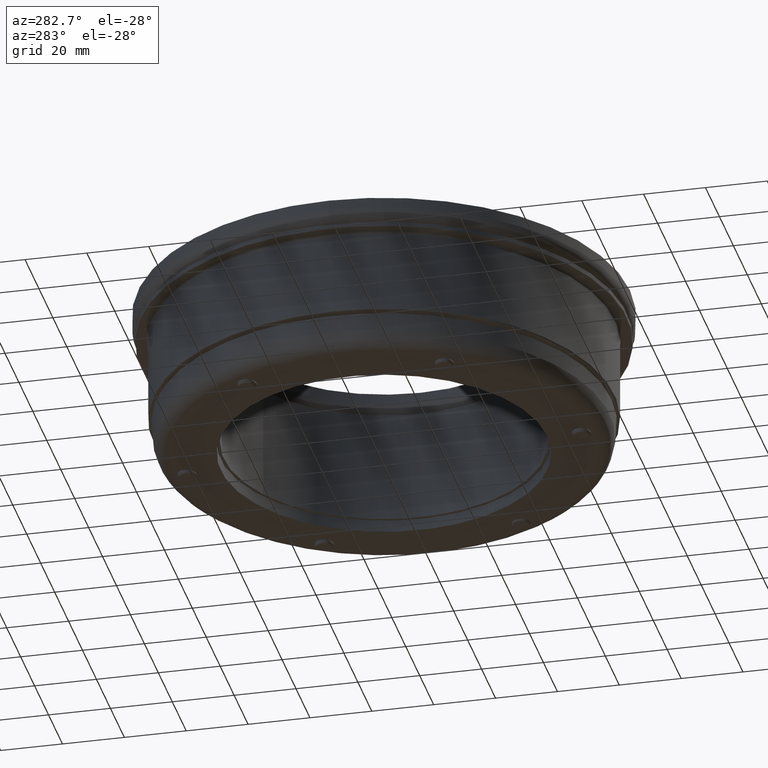
[diagram: clean part render]
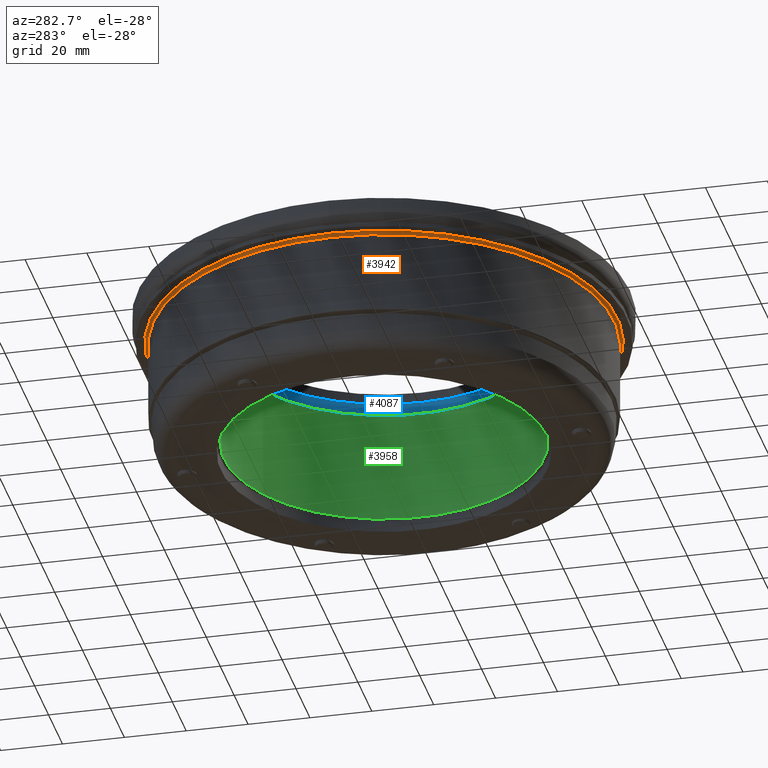
[diagram: same view with three faces highlighted in distinct colors, each labeled with its STEP entity id]
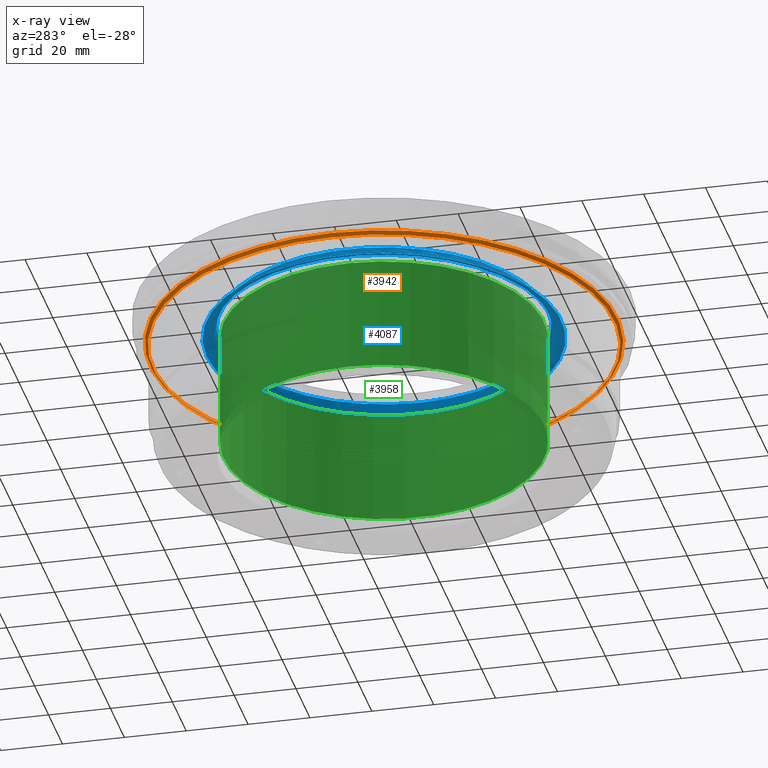
[diagram: x-ray of the same camera — body ghosted, the three highlighted faces saturated]
A machine part, auxiliary view with three faces highlighted in distinct colors.
The next image is the same camera in x-ray (body ghosted, the three faces saturated) — at least one of them is partly hidden behind the body in this view.
Their STEP definitions:

[orange] entity #3942 — the highlighted toroidal blend (fillet) surface has major radius 75.5 mm and minor (blend) radius 1 mm.
#277=TOROIDAL_SURFACE('',#4365,75.5,1.);
#468=FACE_OUTER_BOUND('',#681,.T.);
#681=EDGE_LOOP('',(#2957,#2958,#2959,#2960));
#1576=CIRCLE('',#4364,74.5);
#1577=CIRCLE('',#4366,75.5);
#1578=CIRCLE('',#4367,1.);
#1789=VERTEX_POINT('',#5986);
#1790=VERTEX_POINT('',#5990);
#2236=EDGE_CURVE('',#1789,#1789,#1576,.T.);
#2238=EDGE_CURVE('',#1790,#1790,#1577,.T.);
#2239=EDGE_CURVE('',#1790,#1789,#1578,.T.);
#2957=ORIENTED_EDGE('',*,*,#2238,.T.);
#2958=ORIENTED_EDGE('',*,*,#2239,.T.);
#2959=ORIENTED_EDGE('',*,*,#2236,.T.);
#2960=ORIENTED_EDGE('',*,*,#2239,.F.);
#3942=ADVANCED_FACE('',(#468),#277,.F.);
#4364=AXIS2_PLACEMENT_3D('',#5987,#4928,#4929);
#4365=AXIS2_PLACEMENT_3D('',#5989,#4931,#4932);
#4366=AXIS2_PLACEMENT_3D('',#5991,#4933,#4934);
#4367=AXIS2_PLACEMENT_3D('',#5992,#4935,#4936);
#4928=DIRECTION('center_axis',(0.,-1.83697019872103E-16,1.));
#4929=DIRECTION('ref_axis',(-1.,2.4657318103638E-18,0.));
#4931=DIRECTION('center_axis',(0.,1.83697019872103E-16,-1.));
#4932=DIRECTION('ref_axis',(-1.,0.,0.));
#4933=DIRECTION('center_axis',(0.,1.83697019872103E-16,-1.));
#4934=DIRECTION('ref_axis',(-1.,2.4657318103638E-18,4.52947585367675E-34));
#4935=DIRECTION('center_axis',(-1.22464679914735E-16,-1.,-1.83697019872103E-16));
#4936=DIRECTION('ref_axis',(1.,-1.22464679914735E-16,0.));
#5986=CARTESIAN_POINT('',(74.5,9.49503314608826E-15,34.5));
#5987=CARTESIAN_POINT('Origin',(-5.55111512312578E-16,5.55111512312578E-16,
34.5));
#5989=CARTESIAN_POINT('Origin',(-5.55111512312578E-16,5.55111512312578E-16,
34.5));
#5990=CARTESIAN_POINT('',(75.5,-9.06083159280451E-15,35.5));
#5991=CARTESIAN_POINT('Origin',(-5.55111512312578E-16,3.71414492440473E-16,
35.5));
#5992=CARTESIAN_POINT('Origin',(75.5,-8.69097182124994E-15,34.5));

[blue] entity #4087 — the highlighted toroidal blend (fillet) surface has major radius 57.3 mm and minor (blend) radius 4.5 mm.
#283=TOROIDAL_SURFACE('',#4564,57.3,4.5);
#613=FACE_OUTER_BOUND('',#891,.T.);
#891=EDGE_LOOP('',(#3738,#3739,#3740,#3741,#3742,#3743,#3744));
#1650=CIRCLE('',#4535,57.3);
#1651=CIRCLE('',#4536,57.3);
#1673=CIRCLE('',#4565,4.5);
#1674=CIRCLE('',#4566,52.8);
#1675=CIRCLE('',#4567,52.8);
#1676=CIRCLE('',#4568,52.8);
#2049=VERTEX_POINT('',#7338);
#2050=VERTEX_POINT('',#7339);
#2070=VERTEX_POINT('',#7391);
#2071=VERTEX_POINT('',#7393);
#2072=VERTEX_POINT('',#7395);
#2615=EDGE_CURVE('',#2049,#2050,#1650,.T.);
#2616=EDGE_CURVE('',#2050,#2049,#1651,.T.);
#2640=EDGE_CURVE('',#2050,#2070,#1673,.T.);
#2641=EDGE_CURVE('',#2070,#2071,#1674,.T.);
#2642=EDGE_CURVE('',#2071,#2072,#1675,.T.);
#2643=EDGE_CURVE('',#2072,#2070,#1676,.T.);
#3738=ORIENTED_EDGE('',*,*,#2615,.T.);
#3739=ORIENTED_EDGE('',*,*,#2640,.T.);
#3740=ORIENTED_EDGE('',*,*,#2641,.T.);
#3741=ORIENTED_EDGE('',*,*,#2642,.T.);
#3742=ORIENTED_EDGE('',*,*,#2643,.T.);
#3743=ORIENTED_EDGE('',*,*,#2640,.F.);
#3744=ORIENTED_EDGE('',*,*,#2616,.T.);
#4087=ADVANCED_FACE('',(#613),#283,.T.);
#4535=AXIS2_PLACEMENT_3D('',#7340,#5487,#5488);
#4536=AXIS2_PLACEMENT_3D('',#7341,#5489,#5490);
#4564=AXIS2_PLACEMENT_3D('',#7390,#5547,#5548);
#4565=AXIS2_PLACEMENT_3D('',#7392,#5549,#5550);
#4566=AXIS2_PLACEMENT_3D('',#7394,#5551,#5552);
#4567=AXIS2_PLACEMENT_3D('',#7396,#5553,#5554);
#4568=AXIS2_PLACEMENT_3D('',#7397,#5555,#5556);
#5487=DIRECTION('center_axis',(0.,-1.,0.));
#5488=DIRECTION('ref_axis',(1.,0.,1.22464679914735E-16));
#5489=DIRECTION('center_axis',(0.,-1.,0.));
#5490=DIRECTION('ref_axis',(1.,0.,1.22464679914735E-16));
#5547=DIRECTION('center_axis',(0.,1.,0.));
#5548=DIRECTION('ref_axis',(0.,0.,1.));
#5549=DIRECTION('center_axis',(-1.,0.,1.22464679914735E-16));
#5550=DIRECTION('ref_axis',(-1.22464679914735E-16,0.,-1.));
#5551=DIRECTION('center_axis',(0.,1.,0.));
#5552=DIRECTION('ref_axis',(1.,0.,1.22464679914735E-16));
#5553=DIRECTION('center_axis',(0.,1.,0.));
#5554=DIRECTION('ref_axis',(1.,0.,1.22464679914735E-16));
#5555=DIRECTION('center_axis',(0.,1.,0.));
#5556=DIRECTION('ref_axis',(1.,0.,1.22464679914735E-16));
#7338=CARTESIAN_POINT('',(-57.3,-5.,-1.40344523182287E-14));
#7339=CARTESIAN_POINT('',(-7.01722615911433E-15,-5.,-57.3));
#7340=CARTESIAN_POINT('Origin',(0.,-5.,0.));
#7341=CARTESIAN_POINT('Origin',(0.,-5.,0.));
#7390=CARTESIAN_POINT('Origin',(0.,-0.499999999999996,0.));
#7391=CARTESIAN_POINT('',(-6.46613509949802E-15,-0.499999999999996,-52.8));
#7392=CARTESIAN_POINT('Origin',(-7.01722615911433E-15,-0.499999999999996,
-57.3));
#7393=CARTESIAN_POINT('',(-52.8,-0.499999999999996,0.));
#7394=CARTESIAN_POINT('Origin',(0.,-0.499999999999996,0.));
#7395=CARTESIAN_POINT('',(52.8,-0.499999999999996,-6.46613509949802E-15));
#7396=CARTESIAN_POINT('Origin',(0.,-0.499999999999996,0.));
#7397=CARTESIAN_POINT('Origin',(0.,-0.499999999999996,0.));

[green] entity #3958 — the highlighted cylindrical surface (bore or boss wall) has radius 51.8 mm, axis along (-0, 0, 1).
#406=CYLINDRICAL_SURFACE('',#4398,51.8);
#484=FACE_OUTER_BOUND('',#698,.T.);
#698=EDGE_LOOP('',(#3003,#3004,#3005,#3006));
#963=LINE('',#6048,#1241);
#1241=VECTOR('',#5007,51.8);
#1564=CIRCLE('',#4344,51.8);
#1594=CIRCLE('',#4399,51.8);
#1779=VERTEX_POINT('',#5952);
#1806=VERTEX_POINT('',#6047);
#2220=EDGE_CURVE('',#1779,#1779,#1564,.T.);
#2263=EDGE_CURVE('',#1779,#1806,#963,.T.);
#2264=EDGE_CURVE('',#1806,#1806,#1594,.T.);
#3003=ORIENTED_EDGE('',*,*,#2220,.F.);
#3004=ORIENTED_EDGE('',*,*,#2263,.T.);
#3005=ORIENTED_EDGE('',*,*,#2264,.F.);
#3006=ORIENTED_EDGE('',*,*,#2263,.F.);
#3958=ADVANCED_FACE('',(#484),#406,.F.);
#4344=AXIS2_PLACEMENT_3D('',#5953,#4884,#4885);
#4398=AXIS2_PLACEMENT_3D('',#6046,#5005,#5006);
#4399=AXIS2_PLACEMENT_3D('',#6049,#5008,#5009);
#4884=DIRECTION('center_axis',(0.,0.,1.));
#4885=DIRECTION('ref_axis',(-1.,0.,0.));
#5005=DIRECTION('center_axis',(0.,0.,1.));
#5006=DIRECTION('ref_axis',(-1.,0.,0.));
#5007=DIRECTION('',(0.,0.,1.));
#5008=DIRECTION('center_axis',(0.,0.,-1.));
#5009=DIRECTION('ref_axis',(-1.,0.,0.));
#5952=CARTESIAN_POINT('',(51.8,6.89878193189587E-15,0.));
#5953=CARTESIAN_POINT('Origin',(-5.55111512312578E-16,5.55111512312578E-16,
0.));
#6046=CARTESIAN_POINT('Origin',(-5.55111512312578E-16,5.55111512312578E-16,
0.));
#6047=CARTESIAN_POINT('',(51.8,6.89878193189587E-15,37.));
#6048=CARTESIAN_POINT('',(51.8,6.89878193189587E-15,0.));
#6049=CARTESIAN_POINT('Origin',(-5.55111512312578E-16,5.55111512312578E-16,
37.));